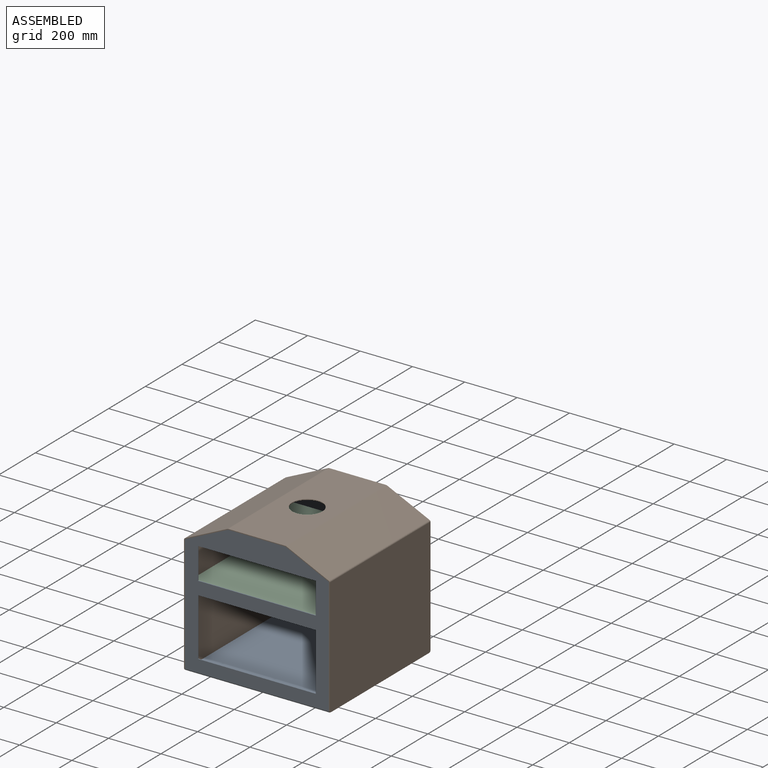
[diagram: assembled view]
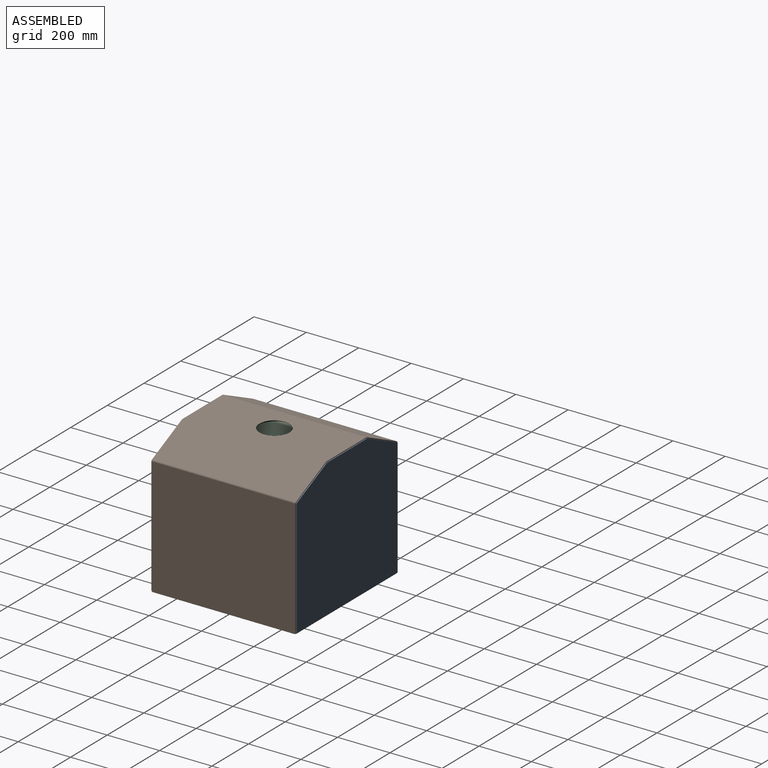
[diagram: assembled view, second angle]
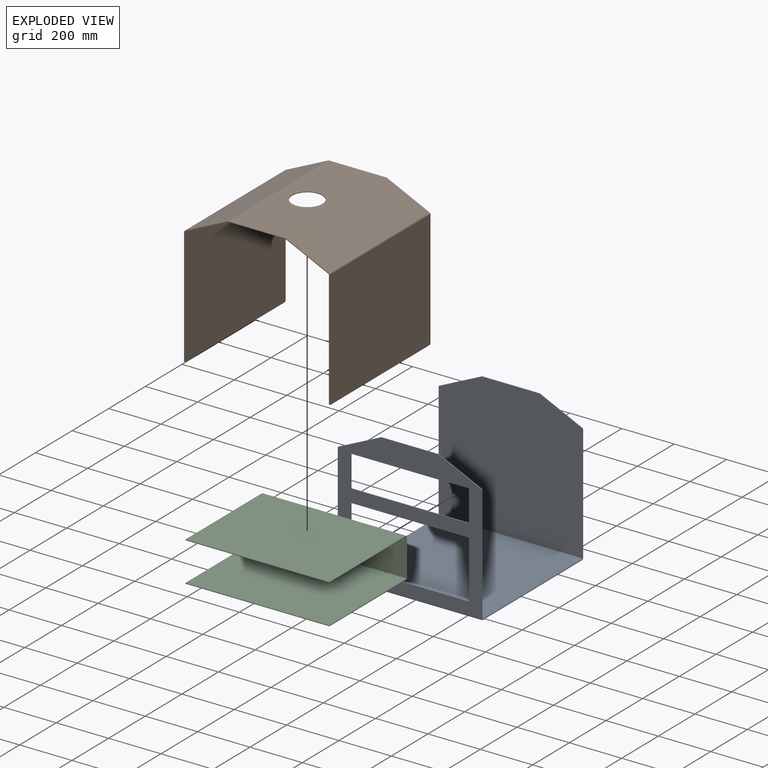
[diagram: exploded view]
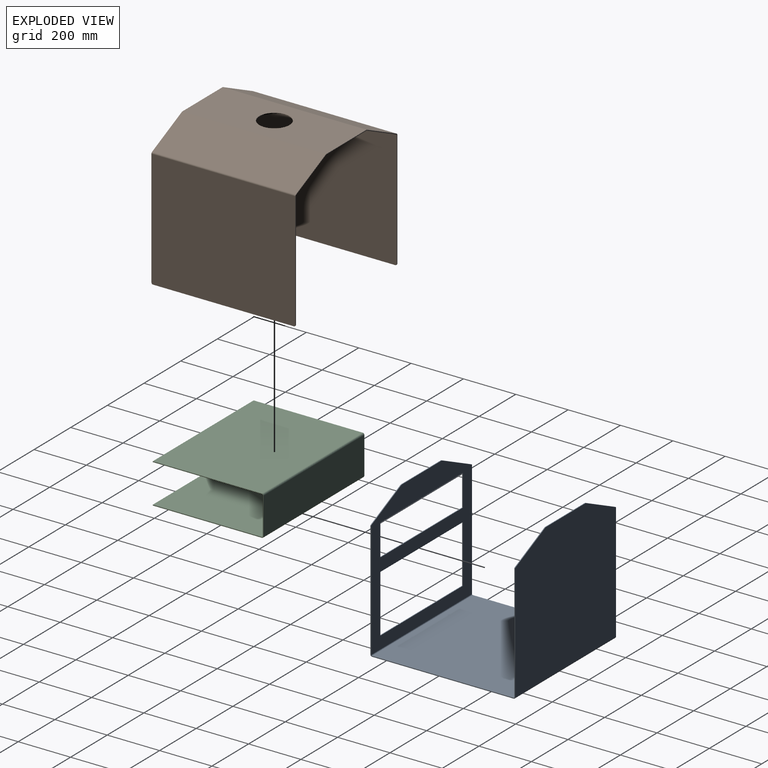
[diagram: exploded view, second angle]
ASSEMBLY  parts=3 mates=2
PART A: 42 faces, bbox 550x529.9x553 mm
  f0: plane 162.67x75.85mm, normal (0.42,-0.91,0), area 538.4mm2, adj f13,f14,f15,f18
  f1: plane 218.67x3mm, normal (0,-1,0), area 656mm2, adj f13,f14,f17,f18
  f2: plane 162.67x75.85mm, normal (-0.42,-0.91,0), area 538.4mm2, adj f13,f14,f16,f17
  f3: plane 445.09x3mm, normal (-1,0,0), area 1335.3mm2, adj f13,f14,f16,f38
  f4: plane 220x3mm, normal (1,0,0), area 660mm2, adj f5,f11,f13,f14
  f5: plane 450x3mm, normal (0,1,0), area 1350mm2, adj f4,f6,f13,f14
  f6: plane 220x3mm, normal (-1,0,0), area 660mm2, adj f5,f11,f13,f14
  f7: plane 120x3mm, normal (1,0,0), area 360mm2, adj f8,f10,f13,f14
  f8: plane 450x3mm, normal (0,1,0), area 1350mm2, adj f7,f9,f13,f14
  f9: plane 120x3mm, normal (-1,0,0), area 360mm2, adj f8,f10,f13,f14
  f10: plane 450x3mm, normal (0,-1,0), area 1350mm2, adj f7,f9,f13,f14
  f11: plane 450x3mm, normal (0,-1,0), area 1350mm2, adj f4,f6,f13,f14
  f12: plane 445.09x3mm, normal (1,0,0), area 1335.3mm2, adj f13,f14,f15,f39
  f13: plane 550x523.94mm, normal (0,0,-1), area 122470.9mm2, adj f0,f1,f2,f3,f4,f5,f6,f7
  f14: plane 550x523.94mm, normal (0,0,1), area 122470.9mm2, adj f0,f1,f2,f3,f4,f5,f6,f7
  f15: cylinder r=3mm len=3mm, axis (0,0,-1), area 10.2mm2, adj f0,f12,f13,f14
  f16: cylinder r=3mm len=3mm, axis (0,0,-1), area 10.2mm2, adj f2,f3,f13,f14
  f17: cylinder r=3mm len=3mm, axis (0,0,-1), area 3.9mm2, adj f1,f2,f13,f14
  f18: cylinder r=3mm len=3mm, axis (0,0,-1), area 3.9mm2, adj f0,f1,f13,f14
  f19: plane 541x3mm, normal (1,0,0), area 1623mm2, adj f21,f22,f35,f39
  f20: plane 541x3mm, normal (-1,0,0), area 1623mm2, adj f21,f22,f34,f38
  f21: plane 550x541mm, normal (0,1,0), area 297550mm2, adj f19,f20,f36,f40
  f22: plane 550x541mm, normal (0,-1,0), area 297550mm2, adj f19,f20,f37,f41
  f23: plane 162.67x75.85mm, normal (0.42,-0.91,0), area 538.4mm2, adj f28,f29,f32,f33
  f24: plane 445.09x3mm, normal (1,0,0), area 1335.3mm2, adj f28,f29,f32,f35
  f25: plane 445.09x3mm, normal (-1,0,0), area 1335.3mm2, adj f28,f29,f30,f34
  f26: plane 162.67x75.85mm, normal (-0.42,-0.91,0), area 538.4mm2, adj f28,f29,f30,f31
  f27: plane 218.67x3mm, normal (0,-1,0), area 656mm2, adj f28,f29,f31,f33
  f28: plane 550x523.94mm, normal (0,0,1), area 275470.9mm2, adj f23,f24,f25,f26,f27,f30,f31,f32
  f29: plane 550x523.94mm, normal (0,0,-1), area 275470.9mm2, adj f23,f24,f25,f26,f27,f30,f31,f32
  f30: cylinder r=3mm len=3mm, axis (0,0,1), area 10.2mm2, adj f25,f26,f28,f29
  f31: cylinder r=3mm len=3mm, axis (0,0,1), area 3.9mm2, adj f26,f27,f28,f29
  f32: cylinder r=3mm len=3mm, axis (0,0,-1), area 10.2mm2, adj f23,f24,f28,f29
  f33: cylinder r=3mm len=3mm, axis (0,0,-1), area 3.9mm2, adj f23,f27,f28,f29
  f34: plane 6x6mm, normal (-1,0,0), area 21.2mm2, adj f20,f25,f36,f37
  f35: plane 6x6mm, normal (1,0,0), area 21.2mm2, adj f19,f24,f36,f37
  f36: cylinder r=6mm len=550mm, axis (-1,0,0), area 5183.6mm2, adj f21,f28,f34,f35
  f37: cylinder r=3mm len=550mm, axis (-1,0,0), area 2591.8mm2, adj f22,f29,f34,f35
  f38: plane 6x6mm, normal (-1,0,0), area 21.2mm2, adj f3,f20,f40,f41
  f39: plane 6x6mm, normal (1,0,0), area 21.2mm2, adj f12,f19,f40,f41
  f40: cylinder r=6mm len=550mm, axis (-1,0,0), area 5183.6mm2, adj f13,f21,f38,f39
  f41: cylinder r=3mm len=550mm, axis (-1,0,0), area 2591.8mm2, adj f14,f22,f38,f39
PART B: 43 faces, bbox 556.1x550x532.1 mm
  f0: plane 218.67x3mm, normal (0,1,0), area 656mm2, adj f3,f4,f21,f40
  f1: plane 218.67x3mm, normal (0,-1,0), area 656mm2, adj f3,f4,f20,f39
  f2: cylinder r=58mm len=116mm, axis (0,0,1), area 1093.3mm2, adj f3,f4
  f3: plane 550x218.67mm, normal (0,0,-1), area 109700.1mm2, adj f0,f1,f2,f22,f41
  f4: plane 550x218.67mm, normal (0,0,1), area 109700.1mm2, adj f0,f1,f2,f23,f42
  f5: plane 164x78.6mm, normal (0,-1,0), area 538.7mm2, adj f7,f8,f17,f20
  f6: plane 164x78.6mm, normal (0,1,0), area 538.7mm2, adj f7,f8,f16,f21
  f7: plane 550x162.74mm, normal (0.42,0,-0.91), area 98757.2mm2, adj f5,f6,f18,f22
  f8: plane 550x162.74mm, normal (-0.42,0,0.91), area 98757.2mm2, adj f5,f6,f19,f23
  f9: plane 538x3mm, normal (0,0,1), area 1614mm2, adj f12,f13,f14,f15
  f10: plane 444.18x3mm, normal (0,-1,0), area 1332.5mm2, adj f12,f13,f15,f17
  f11: plane 444.18x3mm, normal (0,1,0), area 1332.5mm2, adj f12,f13,f14,f16
  f12: plane 550x450.18mm, normal (1,0,0), area 247582.2mm2, adj f9,f10,f11,f14,f15,f18
  f13: plane 550x450.18mm, normal (-1,0,0), area 247582.2mm2, adj f9,f10,f11,f14,f15,f19
  f14: cylinder r=6mm len=6mm, axis (1,0,0), area 28.3mm2, adj f9,f11,f12,f13
  f15: cylinder r=6mm len=6mm, axis (1,0,0), area 28.3mm2, adj f9,f10,f12,f13
  f16: plane 5.44x4.73mm, normal (0,1,0), area 15.3mm2, adj f6,f11,f18,f19
  f17: plane 5.44x4.73mm, normal (0,-1,0), area 15.3mm2, adj f5,f10,f18,f19
  f18: cylinder r=6mm len=550mm, axis (0,1,0), area 3743.7mm2, adj f7,f12,f16,f17
  f19: cylinder r=3mm len=550mm, axis (0,1,0), area 1871.9mm2, adj f8,f13,f16,f17
  f20: plane 3.28x2.54mm, normal (0,-1,0), area 5.9mm2, adj f1,f5,f22,f23
  f21: plane 3.28x2.54mm, normal (0,1,0), area 5.9mm2, adj f0,f6,f22,f23
  f22: cylinder r=6mm len=550mm, axis (0,-1,0), area 1439.9mm2, adj f3,f7,f20,f21
  f23: cylinder r=3mm len=550mm, axis (0,-1,0), area 719.9mm2, adj f4,f8,f20,f21
  f24: plane 164x78.6mm, normal (0,1,0), area 538.7mm2, adj f26,f27,f36,f40
  f25: plane 164x78.6mm, normal (0,-1,0), area 538.7mm2, adj f26,f27,f35,f39
  f26: plane 550x162.74mm, normal (-0.42,0,-0.91), area 98757.2mm2, adj f24,f25,f37,f41
  f27: plane 550x162.74mm, normal (0.42,0,0.91), area 98757.2mm2, adj f24,f25,f38,f42
  f28: plane 538x3mm, normal (0,0,1), area 1614mm2, adj f31,f32,f33,f34
  f29: plane 444.18x3mm, normal (0,1,0), area 1332.5mm2, adj f31,f32,f33,f36
  f30: plane 444.18x3mm, normal (0,-1,0), area 1332.5mm2, adj f31,f32,f34,f35
  f31: plane 550x450.18mm, normal (-1,0,0), area 247582.2mm2, adj f28,f29,f30,f33,f34,f37
  f32: plane 550x450.18mm, normal (1,0,0), area 247582.2mm2, adj f28,f29,f30,f33,f34,f38
  f33: cylinder r=6mm len=6mm, axis (-1,0,0), area 28.3mm2, adj f28,f29,f31,f32
  f34: cylinder r=6mm len=6mm, axis (-1,0,0), area 28.3mm2, adj f28,f30,f31,f32
  f35: plane 5.44x4.73mm, normal (0,-1,0), area 15.3mm2, adj f25,f30,f37,f38
  f36: plane 5.44x4.73mm, normal (0,1,0), area 15.3mm2, adj f24,f29,f37,f38
  f37: cylinder r=6mm len=550mm, axis (0,-1,0), area 3743.7mm2, adj f26,f31,f35,f36
  f38: cylinder r=3mm len=550mm, axis (0,-1,0), area 1871.9mm2, adj f27,f32,f35,f36
  f39: plane 3.28x2.54mm, normal (0,-1,0), area 5.9mm2, adj f1,f25,f41,f42
  f40: plane 3.28x2.54mm, normal (0,1,0), area 5.9mm2, adj f0,f24,f41,f42
  f41: cylinder r=6mm len=550mm, axis (0,-1,0), area 1439.9mm2, adj f3,f26,f39,f40
  f42: cylinder r=3mm len=550mm, axis (0,-1,0), area 719.9mm2, adj f4,f27,f39,f40
PART C: 22 faces, bbox 550x423x153 mm
  f0: plane 417x3mm, normal (1,0,0), area 1251mm2, adj f1,f3,f4,f19
  f1: plane 550x3mm, normal (0,-1,0), area 1650mm2, adj f0,f2,f3,f4
  f2: plane 417x3mm, normal (-1,0,0), area 1251mm2, adj f1,f3,f4,f18
  f3: plane 550x417mm, normal (0,0,-1), area 229350mm2, adj f0,f1,f2,f20
  f4: plane 550x417mm, normal (0,0,1), area 229350mm2, adj f0,f1,f2,f21
  f5: plane 141x3mm, normal (1,0,0), area 423mm2, adj f7,f8,f15,f19
  f6: plane 141x3mm, normal (-1,0,0), area 423mm2, adj f7,f8,f14,f18
  f7: plane 550x141mm, normal (0,1,0), area 77550mm2, adj f5,f6,f16,f20
  f8: plane 550x141mm, normal (0,-1,0), area 77550mm2, adj f5,f6,f17,f21
  f9: plane 550x3mm, normal (0,-1,0), area 1650mm2, adj f10,f11,f12,f13
  f10: plane 417x3mm, normal (1,0,0), area 1251mm2, adj f9,f12,f13,f15
  f11: plane 417x3mm, normal (-1,0,0), area 1251mm2, adj f9,f12,f13,f14
  f12: plane 550x417mm, normal (0,0,1), area 229350mm2, adj f9,f10,f11,f16
  f13: plane 550x417mm, normal (0,0,-1), area 229350mm2, adj f9,f10,f11,f17
  f14: plane 6x6mm, normal (-1,0,0), area 21.2mm2, adj f6,f11,f16,f17
  f15: plane 6x6mm, normal (1,0,0), area 21.2mm2, adj f5,f10,f16,f17
  f16: cylinder r=6mm len=550mm, axis (-1,0,0), area 5183.6mm2, adj f7,f12,f14,f15
  f17: cylinder r=3mm len=550mm, axis (-1,0,0), area 2591.8mm2, adj f8,f13,f14,f15
  f18: plane 6x6mm, normal (-1,0,0), area 21.2mm2, adj f2,f6,f20,f21
  f19: plane 6x6mm, normal (1,0,0), area 21.2mm2, adj f0,f5,f20,f21
  f20: cylinder r=6mm len=550mm, axis (-1,0,0), area 5183.6mm2, adj f3,f7,f18,f19
  f21: cylinder r=3mm len=550mm, axis (-1,0,0), area 2591.8mm2, adj f4,f8,f18,f19
PLACE A rot(axis=(-1,0,0),90deg) t=(0,-276.5,272)mm
PLACE B rot(axis=(0,1,0),180deg) t=(0,-1.5,532.94)mm
PLACE C rot(axis=(1,0,0),0deg) t=(0,-63.5,298.09)mm
MATE fastened A.f14 <-> C.f9  axis (0,-1,0) through (275,-273.5,451.09)mm
MATE fastened B.f4 <-> A.f1  axis (0,0,-1) through (0,-276.5,529.94)mm
